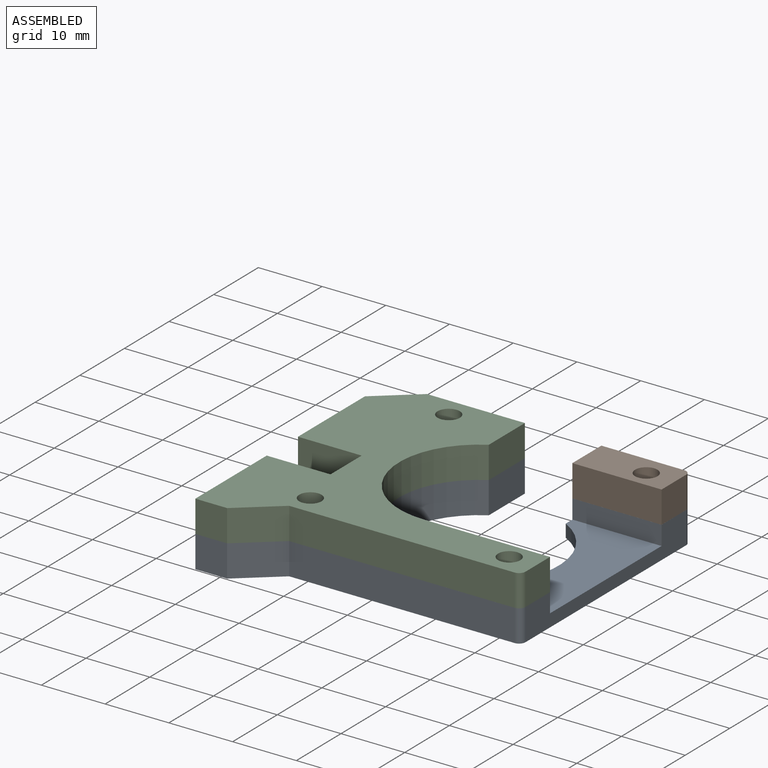
[diagram: assembled view]
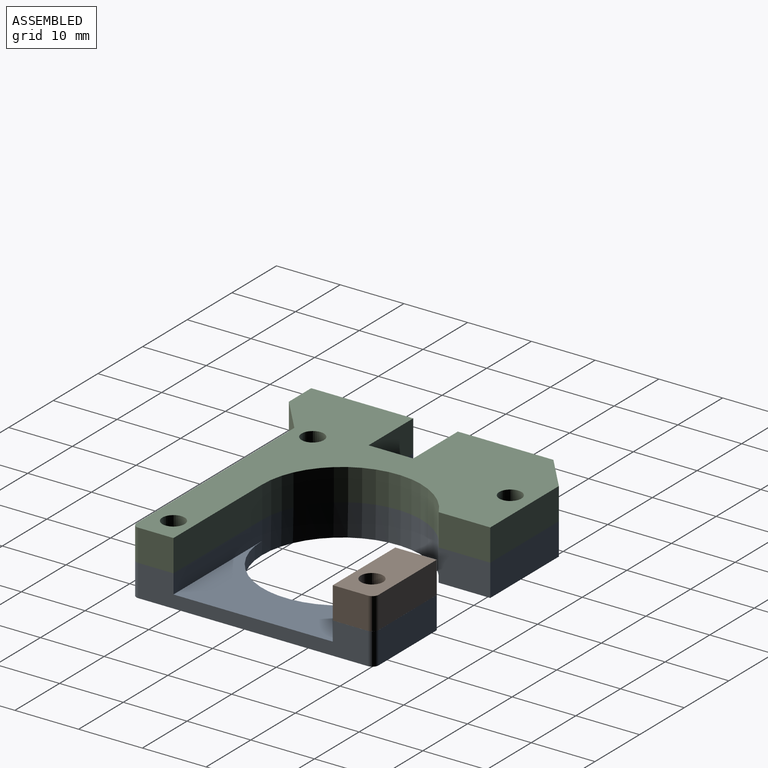
[diagram: assembled view, second angle]
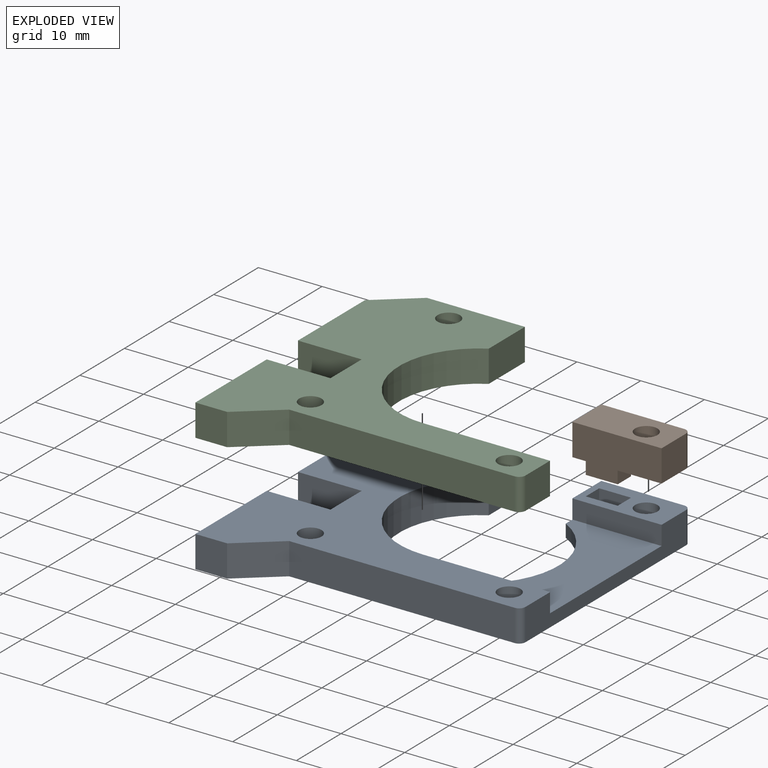
[diagram: exploded view]
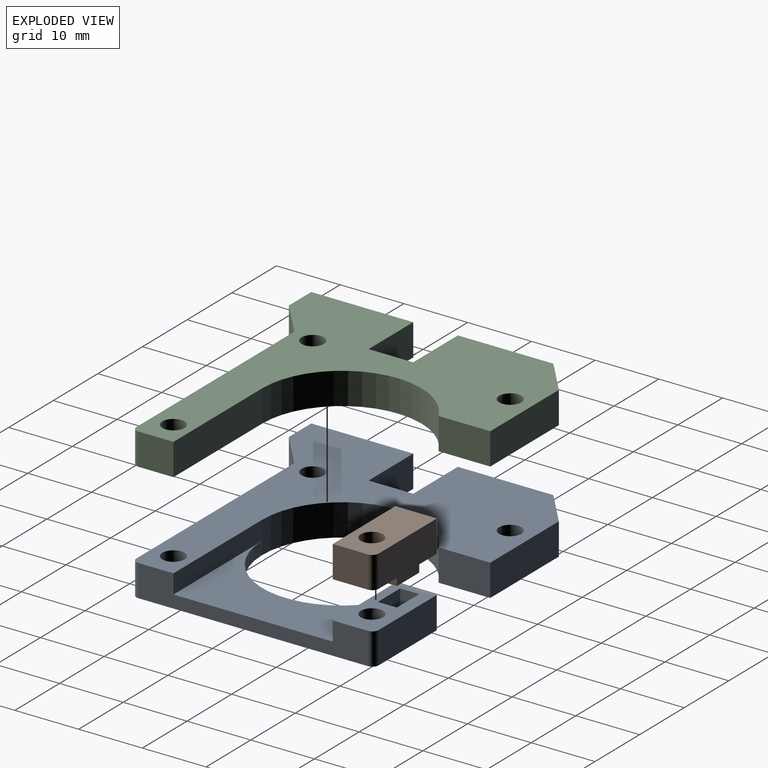
[diagram: exploded view, second angle]
ASSEMBLY  parts=3 mates=2
PART A: 32 faces, bbox 47.5x43.1x5 mm
  f0: plane 25x19.9mm, normal (0,0,1), area 249.2mm2, adj f2,f3,f16,f23,f28
  f1: plane 13x5mm, normal (0,1,0), area 65mm2, adj f2,f19,f22,f30
  f2: plane 7.98x5mm, normal (-1,0,0), area 35.5mm2, adj f0,f1,f3,f22,f28,f30
  f3: cylinder r=12.5mm len=25mm, axis (0,0,-1), area 230.7mm2, adj f0,f2,f4,f22,f23,f24
  f4: plane 8.09x5mm, normal (1,0,0), area 40.4mm2, adj f3,f5,f22,f24
  f5: plane 15.37x5mm, normal (0,1,0), area 76.9mm2, adj f4,f6,f22,f24
  f6: plane 6.13x5.14mm, normal (-0.64,0.77,0), area 40mm2, adj f5,f7,f22,f24
  f7: plane 15x5mm, normal (-1,0,0), area 75mm2, adj f6,f8,f22,f24
  f8: plane 10x5mm, normal (0,-1,0), area 50mm2, adj f7,f9,f22,f24
  f9: plane 7x5mm, normal (-1,0,0), area 35mm2, adj f8,f10,f22,f24
  f10: plane 10x5mm, normal (0,1,0), area 50mm2, adj f9,f11,f22,f24
  f11: plane 16x5mm, normal (-1,0,0), area 80mm2, adj f10,f12,f22,f24
  f12: plane 5x5mm, normal (0,-1,0), area 25mm2, adj f11,f13,f22,f24
  f13: plane 6.13x5.14mm, normal (0.64,-0.77,0), area 40mm2, adj f12,f14,f22,f24
  f14: plane 35.37x5mm, normal (0,-1,0), area 176.9mm2, adj f13,f15,f22,f24
  f15: cylinder r=1mm len=5mm, axis (0,0,-1), area 7.9mm2, adj f14,f16,f22,f24
  f16: plane 36x5mm, normal (1,0,0), area 105mm2, adj f0,f15,f19,f22,f23,f24,f28,f30
  f17: cylinder r=1.75mm len=5mm, axis (0,0,-1), area 55mm2, adj f22,f24
  f18: cylinder r=1.75mm len=5mm, axis (0,0,-1), area 55mm2, adj f22,f24
  f19: cylinder r=1mm len=5mm, axis (0,0,-1), area 7.9mm2, adj f1,f16,f22,f30
  f20: cylinder r=1.75mm len=5mm, axis (0,0,-1), area 55mm2, adj f22,f30
  f21: cylinder r=1.75mm len=5mm, axis (0,0,-1), area 55mm2, adj f22,f24
  f22: plane 47.5x43.14mm, normal (0,0,-1), area 1146.9mm2, adj f1,f2,f3,f4,f5,f6,f7,f8
  f23: plane 19.9x3mm, normal (0,1,0), area 59.7mm2, adj f0,f3,f16,f24
  f24: plane 47.5x43.14mm, normal (0,0,1), area 816.6mm2, adj f3,f4,f5,f6,f7,f8,f9,f10
  f25: plane 5x3mm, normal (0,-1,0), area 15mm2, adj f26,f29,f30,f31
  f26: plane 3x3mm, normal (-1,0,0), area 9mm2, adj f25,f27,f30,f31
  f27: plane 5x3mm, normal (0,1,0), area 15mm2, adj f26,f29,f30,f31
  f28: plane 14x3mm, normal (0,-1,0), area 42mm2, adj f0,f2,f16,f30
  f29: plane 3x3mm, normal (1,0,0), area 9mm2, adj f25,f27,f30,f31
  f30: plane 14x6.5mm, normal (0,0,1), area 66.2mm2, adj f1,f2,f16,f19,f20,f25,f26,f27
  f31: plane 5x3mm, normal (0,0,1), area 15mm2, adj f25,f26,f27,f29
PART B: 13 faces, bbox 14x6.5x7.8 mm
  f0: plane 14x6.5mm, normal (0,0,-1), area 66.2mm2, adj f1,f2,f3,f4,f5,f6,f8,f9
  f1: plane 13x5mm, normal (0,1,0), area 65mm2, adj f0,f2,f6,f7
  f2: plane 6.5x5mm, normal (-1,0,0), area 32.5mm2, adj f0,f1,f3,f7
  f3: plane 14x5mm, normal (0,-1,0), area 70mm2, adj f0,f2,f4,f7
  f4: plane 5.5x5mm, normal (1,0,0), area 27.5mm2, adj f0,f3,f6,f7
  f5: cylinder r=1.75mm len=5mm, axis (0,0,-1), area 55mm2, adj f0,f7
  f6: cylinder r=1mm len=5mm, axis (0,0,-1), area 7.9mm2, adj f0,f1,f4,f7
  f7: plane 14x6.5mm, normal (0,0,1), area 81.2mm2, adj f1,f2,f3,f4,f5,f6
  f8: plane 3x2.8mm, normal (1,0,0), area 8.4mm2, adj f0,f9,f11,f12
  f9: plane 5x2.8mm, normal (0,1,0), area 14mm2, adj f0,f8,f10,f12
  f10: plane 3x2.8mm, normal (-1,0,0), area 8.4mm2, adj f0,f9,f11,f12
  f11: plane 5x2.8mm, normal (0,-1,0), area 14mm2, adj f0,f8,f10,f12
  f12: plane 5x3mm, normal (0,0,-1), area 15mm2, adj f8,f9,f10,f11
PART C: 20 faces, bbox 47.5x43.1x5 mm
  f0: plane 10x5mm, normal (0,-1,0), area 50mm2, adj f1,f17,f18,f19
  f1: plane 7x5mm, normal (-1,0,0), area 35mm2, adj f0,f2,f18,f19
  f2: plane 10x5mm, normal (0,1,0), area 50mm2, adj f1,f3,f18,f19
  f3: plane 16x5mm, normal (-1,0,0), area 80mm2, adj f2,f4,f18,f19
  f4: plane 5x5mm, normal (0,-1,0), area 25mm2, adj f3,f5,f18,f19
  f5: plane 6.13x5.14mm, normal (0.64,-0.77,0), area 40mm2, adj f4,f6,f18,f19
  f6: plane 35.37x5mm, normal (0,-1,0), area 176.9mm2, adj f5,f7,f18,f19
  f7: cylinder r=1mm len=5mm, axis (0,0,-1), area 7.9mm2, adj f6,f8,f18,f19
  f8: plane 5.5x5mm, normal (1,0,0), area 27.5mm2, adj f7,f9,f18,f19
  f9: plane 19.9x5mm, normal (0,1,0), area 99.5mm2, adj f8,f10,f18,f19
  f10: cylinder r=12.5mm len=23.41mm, axis (0,0,-1), area 164.5mm2, adj f9,f11,f18,f19
  f11: plane 8.09x5mm, normal (1,0,0), area 40.4mm2, adj f10,f12,f18,f19
  f12: plane 15.37x5mm, normal (0,1,0), area 76.9mm2, adj f11,f13,f18,f19
  f13: plane 6.13x5.14mm, normal (-0.64,0.77,0), area 40mm2, adj f12,f17,f18,f19
  f14: cylinder r=1.75mm len=5mm, axis (0,0,-1), area 55mm2, adj f18,f19
  f15: cylinder r=1.75mm len=5mm, axis (0,0,-1), area 55mm2, adj f18,f19
  f16: cylinder r=1.75mm len=5mm, axis (0,0,-1), area 55mm2, adj f18,f19
  f17: plane 15x5mm, normal (-1,0,0), area 75mm2, adj f0,f13,f18,f19
  f18: plane 47.5x43.14mm, normal (0,0,1), area 816.6mm2, adj f0,f1,f2,f3,f4,f5,f6,f7
  f19: plane 47.5x43.14mm, normal (0,0,-1), area 816.6mm2, adj f0,f1,f2,f3,f4,f5,f6,f7
PLACE A t=(1.88,-3.17,-6.41)mm
PLACE B t=(1.88,-3.17,-1.41)mm
PLACE C t=(1.88,-3.17,-1.41)mm
MATE slider B.f12 <-> A.f31  axis (0,0,-1) through (-15.76,18.15,-4.21)mm
MATE fastened C.f16 <-> A.f18  axis (0,0,-1) through (-40.82,-12.85,-1.41)mm
